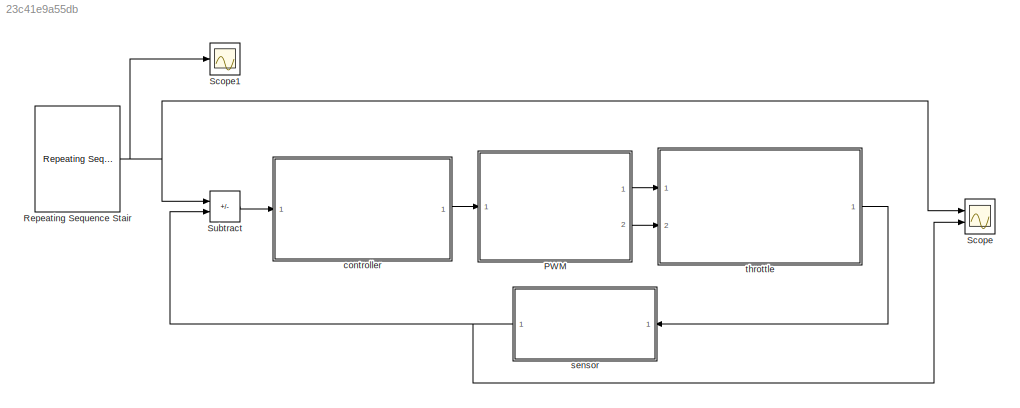
MODEL slx_23c41e9a55db
KIND model
CONFIG AbsTol = auto
CONFIG EnableMultiTasking = off
CONFIG FixedStep = auto
CONFIG MaxStep = auto
CONFIG MinStep = auto
CONFIG RelTol = 1e-3
CONFIG SampleTimeConstraint = Unconstrained
CONFIG SolverName = VariableStepAuto
CONFIG StartTime = 0.0
CONFIG StopTime = 10
WORKSPACE source: mxarray member
WORKSPACE Cs = 3
WORKSPACE Eeq = 0.523598775598
WORKSPACE J = 0.000245
WORKSPACE Sig: Simulink.Signal (value not decoded)
WORKSPACE Sig1: Simulink.Signal (value not decoded)
WORKSPACE Sig2: Simulink.Signal (value not decoded)
WORKSPACE Sig3: Simulink.Signal (value not decoded)
WORKSPACE Sig4: Simulink.Signal (value not decoded)
WORKSPACE Sig5: Simulink.Signal (value not decoded)
WORKSPACE Ts = 0.01
WORKSPACE kd = 0.03
WORKSPACE ki = 0.3
WORKSPACE kp = 0.2
WORKSPACE ks = 0.02
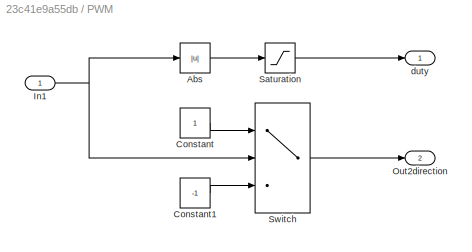
BLOCK [SubSystem] PWM
  Ports = [1, 2]
  RequestExecContextInheritance = off
BLOCK [Abs] PWM/Abs
  SaturateOnIntegerOverflow = off
BLOCK [Constant] PWM/Constant
BLOCK [Constant] PWM/Constant1
  Value = -1
BLOCK [Inport] PWM/In1
BLOCK [Outport] PWM/Out2direction
  Port = 2
  VectorParamsAs1DForOutWhenUnconnected = off
BLOCK [Saturate] PWM/Saturation
  LowerLimit = 0
  UpperLimit = 1
BLOCK [Switch] PWM/Switch
  InputSameDT = off
  SaturateOnIntegerOverflow = off
BLOCK [Outport] PWM/duty
  VectorParamsAs1DForOutWhenUnconnected = off
BLOCK [Reference] Repeating Sequence Stair  REF=simulink/Sources/Repeating
Sequence
Stair
  Ports = [0, 1]
  SourceBlock = simulink/Sources/Repeating\nSequence\nStair
  SourceProductBaseCode = SL
  SourceType = Repeating Sequence Stair
BLOCK [Scope] Scope
  Floating = off
  NumInputPorts = 2
  Ports = [2]
  ScopeSpecificationString = Simulink.scopes.TimeScopeBlockCfg('CurrentConfiguration', extmgr.ConfigurationSet(extmgr.Configuration('Core','General UI',true,'FigureColor',[1 1 1]),extmgr.Configuration('Core','Source UI',true),extmgr.Configuration('Sources','WiredSimulink',true),extmgr.Configuration('Visuals','Time Domain',true,'PlotType','Line','SerializedDisplays',{struct('MinYLimReal','-0.62813','MaxYLimReal','5.6532','YLab...<+1765ch>
BLOCK [Scope] Scope1
  Floating = off
  NumInputPorts = 1
  Ports = [1]
  ScopeSpecificationString = Simulink.scopes.TimeScopeBlockCfg('CurrentConfiguration', extmgr.ConfigurationSet(extmgr.Configuration('Core','General UI',true),extmgr.Configuration('Core','Source UI',true),extmgr.Configuration('Sources','WiredSimulink',true,'DataLoggingVariableName','ScopeData1'),extmgr.Configuration('Visuals','Time Domain',true,'SerializedDisplays',{struct('MinYLimReal','-0.625','MaxYLimReal','5.625','YLabelRe...<+1398ch>
BLOCK [Sum] Subtract
  IconShape = rectangular
  Inputs = +-
  Ports = [2, 1]
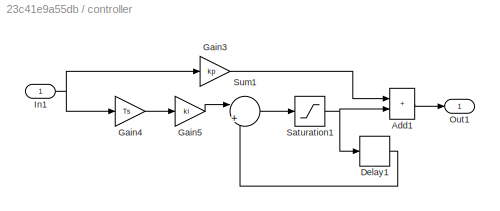
BLOCK [SubSystem] controller 
  Ports = [1, 1]
  RequestExecContextInheritance = off
BLOCK [Sum] controller /Add1
  IconShape = rectangular
  Ports = [2, 1]
BLOCK [Delay] controller /Delay1
  DelayLength = 1
  InputPortMap = u0
  Ports = [1, 1]
BLOCK [Gain] controller /Gain3
  Gain = kp
BLOCK [Gain] controller /Gain4
  Gain = Ts
BLOCK [Gain] controller /Gain5
  Gain = ki
BLOCK [Inport] controller /In1
BLOCK [Outport] controller /Out1
  VectorParamsAs1DForOutWhenUnconnected = off
BLOCK [Saturate] controller /Saturation1
  LowerLimit = -1
  UpperLimit = 1
BLOCK [Sum] controller /Sum1
  Inputs = |++
  Ports = [2, 1]
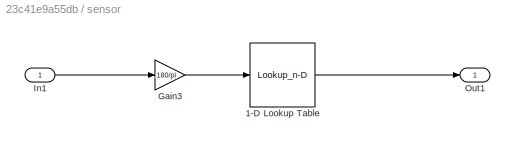
BLOCK [SubSystem] sensor 
  NameLocation = top
  Ports = [1, 1]
  RequestExecContextInheritance = off
BLOCK [Lookup_n-D] sensor /1-D Lookup Table
  BreakpointsForDimension1 = [0 90]
  InputPortMap = u0
  InternalRulePriority = Speed
  NumberOfTableDimensions = 1
  Ports = [1, 1]
  RndMeth = Simplest
  Table = [0.5 4.5]
BLOCK [Gain] sensor /Gain3
  Gain = 180/pi
BLOCK [Inport] sensor /In1
BLOCK [Outport] sensor /Out1
  VectorParamsAs1DForOutWhenUnconnected = off
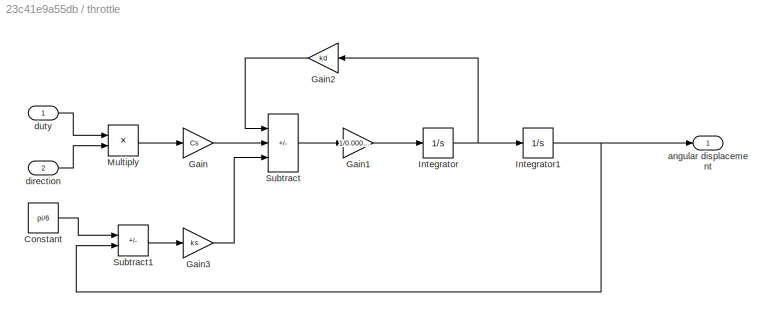
BLOCK [SubSystem] throttle 
  Ports = [2, 1]
  RequestExecContextInheritance = off
BLOCK [Constant] throttle /Constant
  Value = pi/6
BLOCK [Gain] throttle /Gain
  Gain = Cs
BLOCK [Gain] throttle /Gain1
  Gain = 1/0.000245
BLOCK [Gain] throttle /Gain2
  Gain = kd
  NameLocation = top
BLOCK [Gain] throttle /Gain3
  Gain = ks
BLOCK [Integrator] throttle /Integrator
  Ports = [1, 1]
BLOCK [Integrator] throttle /Integrator1
  LimitOutput = on
  LowerSaturationLimit = 0
  Ports = [1, 1]
  UpperSaturationLimit = 90
BLOCK [Product] throttle /Multiply
  Ports = [2, 1]
BLOCK [Sum] throttle /Subtract
  IconShape = rectangular
  Inputs = -+-
  Ports = [3, 1]
BLOCK [Sum] throttle /Subtract1
  IconShape = rectangular
  Inputs = -+
  Ports = [2, 1]
BLOCK [Outport] throttle /angular displacement 
  VectorParamsAs1DForOutWhenUnconnected = off
BLOCK [Inport] throttle /direction 
  Port = 2
BLOCK [Inport] throttle /duty
LINE PWM/Abs:1 -> PWM/Saturation:1
LINE PWM/Constant1:1 -> PWM/Switch:3
LINE PWM/Constant:1 -> PWM/Switch:1
NET PWM/In1:1 -> PWM/Abs:1, PWM/Switch:2
LINE PWM/Saturation:1 -> PWM/duty:1
LINE PWM/Switch:1 -> PWM/Out2direction:1
LINE PWM:1 -> throttle :1
LINE PWM:2 -> throttle :2
NET Repeating Sequence Stair:1 -> Scope1:1, Scope:1, Subtract:1
LINE Subtract:1 -> controller :1
LINE controller /Add1:1 -> controller /Out1:1
LINE controller /Delay1:1 -> controller /Sum1:2
LINE controller /Gain3:1 -> controller /Add1:1
LINE controller /Gain4:1 -> controller /Gain5:1
LINE controller /Gain5:1 -> controller /Sum1:1
NET controller /In1:1 -> controller /Gain3:1, controller /Gain4:1
NET controller /Saturation1:1 -> controller /Add1:2, controller /Delay1:1
LINE controller /Sum1:1 -> controller /Saturation1:1
LINE controller :1 -> PWM:1
LINE sensor /1-D Lookup Table:1 -> sensor /Out1:1
LINE sensor /Gain3:1 -> sensor /1-D Lookup Table:1
LINE sensor /In1:1 -> sensor /Gain3:1
NET sensor :1 -> Scope:2, Subtract:2
LINE throttle /Constant:1 -> throttle /Subtract1:1
LINE throttle /Gain1:1 -> throttle /Integrator:1
LINE throttle /Gain2:1 -> throttle /Subtract:1
LINE throttle /Gain3:1 -> throttle /Subtract:3
LINE throttle /Gain:1 -> throttle /Subtract:2
NET throttle /Integrator1:1 -> throttle /Subtract1:2, throttle /angular displacement :1
NET throttle /Integrator:1 -> throttle /Gain2:1, throttle /Integrator1:1
LINE throttle /Multiply:1 -> throttle /Gain:1
LINE throttle /Subtract1:1 -> throttle /Gain3:1
LINE throttle /Subtract:1 -> throttle /Gain1:1
LINE throttle /direction :1 -> throttle /Multiply:2
LINE throttle /duty:1 -> throttle /Multiply:1
LINE throttle :1 -> sensor :1
note: NET lines group one-source signal fan-out (src -> all destinations, sorted); 1:1 wires keep LINE
